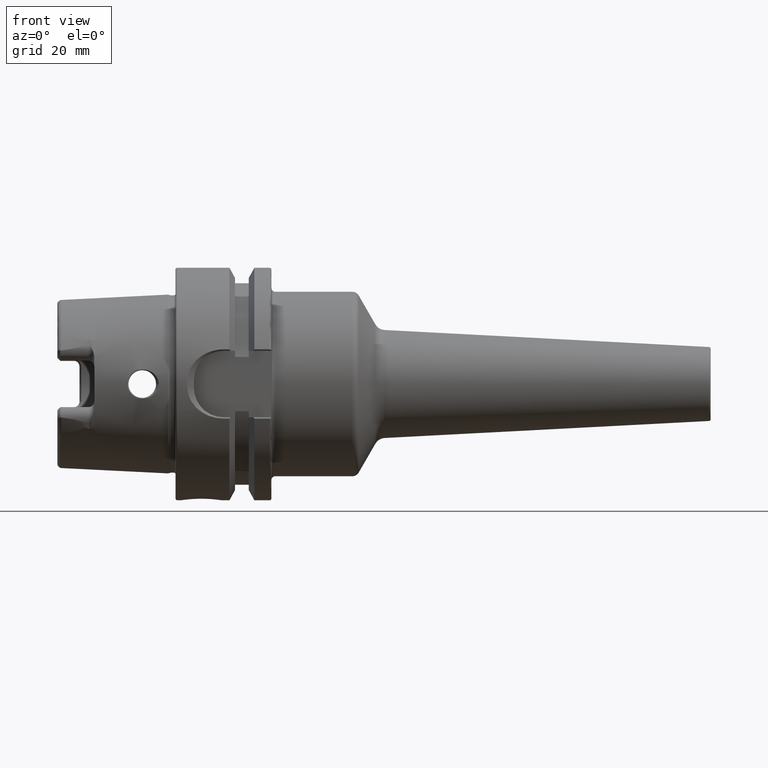
[diagram: clean part render]
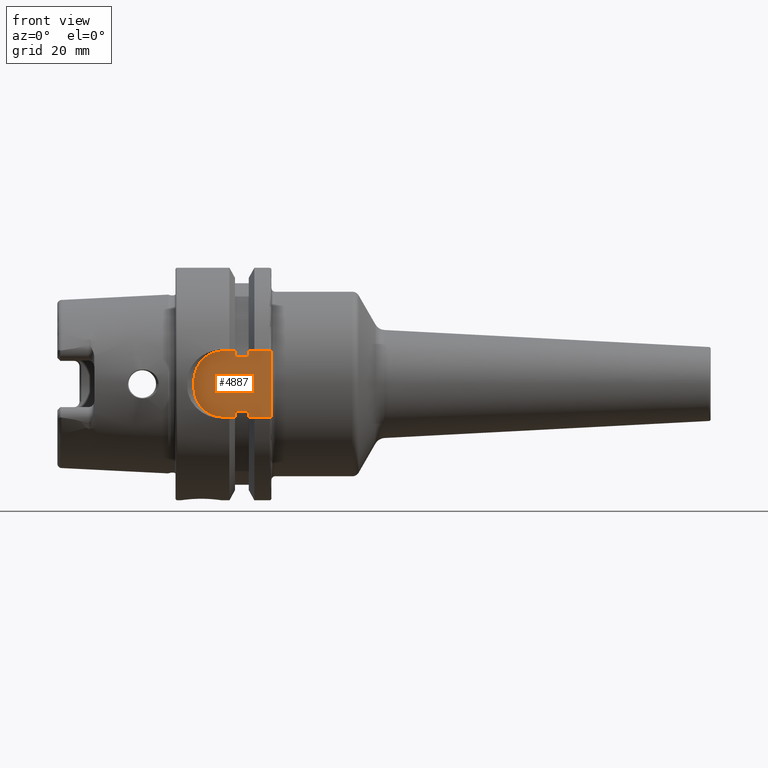
[diagram: same view with one face highlighted and labeled with its STEP entity id]
A machine part, front view. The second image highlights one B-rep face of the part: STEP entity #4887.
In plain terms, the highlighted planar face has unit normal (0, 1, 0).
Its self-contained STEP definition (entity closure, byte-faithful):
#1694=DIRECTION('',(0.E0,0.E0,1.E0));
#1695=VECTOR('',#1694,1.651530771650E0);
#1696=CARTESIAN_POINT('',(1.6125E1,-2.65E1,-9.E0));
#1697=LINE('',#1696,#1695);
#1726=DIRECTION('',(0.E0,0.E0,1.E0));
#1727=VECTOR('',#1726,1.651530771650E0);
#1728=CARTESIAN_POINT('',(1.6125E1,-2.65E1,7.348469228350E0));
#1729=LINE('',#1728,#1727);
#1734=CARTESIAN_POINT('',(1.3E1,-2.65E1,1.E0));
#1735=DIRECTION('',(0.E0,-1.E0,0.E0));
#1736=DIRECTION('',(0.E0,0.E0,1.E0));
#1737=AXIS2_PLACEMENT_3D('',#1734,#1735,#1736);
#1739=DIRECTION('',(1.E0,0.E0,0.E0));
#1740=VECTOR('',#1739,3.125E0);
#1741=CARTESIAN_POINT('',(1.3E1,-2.65E1,9.E0));
#1742=LINE('',#1741,#1740);
#1743=DIRECTION('',(1.E0,0.E0,0.E0));
#1744=VECTOR('',#1743,6.125E0);
#1745=CARTESIAN_POINT('',(1.9875E1,-2.65E1,9.E0));
#1746=LINE('',#1745,#1744);
#1747=DIRECTION('',(-1.E0,0.E0,0.E0));
#1748=VECTOR('',#1747,6.125E0);
#1749=CARTESIAN_POINT('',(2.6E1,-2.65E1,-9.E0));
#1750=LINE('',#1749,#1748);
#1751=DIRECTION('',(-1.E0,0.E0,0.E0));
#1752=VECTOR('',#1751,3.125E0);
#1753=CARTESIAN_POINT('',(1.6125E1,-2.65E1,-9.E0));
#1754=LINE('',#1753,#1752);
#1755=CARTESIAN_POINT('',(1.3E1,-2.65E1,-1.E0));
#1756=DIRECTION('',(0.E0,-1.E0,0.E0));
#1757=DIRECTION('',(-1.E0,0.E0,0.E0));
#1758=AXIS2_PLACEMENT_3D('',#1755,#1756,#1757);
#1760=DIRECTION('',(0.E0,0.E0,1.E0));
#1761=VECTOR('',#1760,2.E0);
#1762=CARTESIAN_POINT('',(5.E0,-2.65E1,-1.E0));
#1763=LINE('',#1762,#1761);
#1881=DIRECTION('',(1.E0,0.E0,0.E0));
#1882=VECTOR('',#1881,3.75E0);
#1883=CARTESIAN_POINT('',(1.6125E1,-2.65E1,7.348469228350E0));
#1884=LINE('',#1883,#1882);
#1899=DIRECTION('',(1.E0,0.E0,0.E0));
#1900=VECTOR('',#1899,3.75E0);
#1901=CARTESIAN_POINT('',(1.6125E1,-2.65E1,-7.348469228350E0));
#1902=LINE('',#1901,#1900);
#1917=DIRECTION('',(0.E0,0.E0,1.E0));
#1918=VECTOR('',#1917,1.651530771650E0);
#1919=CARTESIAN_POINT('',(1.9875E1,-2.65E1,-9.E0));
#1920=LINE('',#1919,#1918);
#1941=DIRECTION('',(0.E0,0.E0,1.E0));
#1942=VECTOR('',#1941,1.651530771650E0);
#1943=CARTESIAN_POINT('',(1.9875E1,-2.65E1,7.348469228350E0));
#1944=LINE('',#1943,#1942);
#2106=DIRECTION('',(0.E0,0.E0,1.E0));
#2107=VECTOR('',#2106,1.8E1);
#2108=CARTESIAN_POINT('',(2.6E1,-2.65E1,-9.E0));
#2109=LINE('',#2108,#2107);
#2579=CARTESIAN_POINT('',(2.6E1,-2.65E1,-9.E0));
#2580=CARTESIAN_POINT('',(2.6E1,-2.65E1,9.E0));
#2581=VERTEX_POINT('',#2579);
#2582=VERTEX_POINT('',#2580);
#2583=CARTESIAN_POINT('',(1.6125E1,-2.65E1,-9.E0));
#2584=CARTESIAN_POINT('',(1.6125E1,-2.65E1,-7.348469228350E0));
#2585=VERTEX_POINT('',#2583);
#2586=VERTEX_POINT('',#2584);
#2587=CARTESIAN_POINT('',(1.6125E1,-2.65E1,7.348469228350E0));
#2588=CARTESIAN_POINT('',(1.6125E1,-2.65E1,9.E0));
#2589=VERTEX_POINT('',#2587);
#2590=VERTEX_POINT('',#2588);
#2595=CARTESIAN_POINT('',(1.9875E1,-2.65E1,7.348469228350E0));
#2596=VERTEX_POINT('',#2595);
#2597=CARTESIAN_POINT('',(1.9875E1,-2.65E1,-7.348469228350E0));
#2598=VERTEX_POINT('',#2597);
#2599=CARTESIAN_POINT('',(1.9875E1,-2.65E1,-9.E0));
#2600=VERTEX_POINT('',#2599);
#2601=CARTESIAN_POINT('',(1.9875E1,-2.65E1,9.E0));
#2602=VERTEX_POINT('',#2601);
#2607=CARTESIAN_POINT('',(1.3E1,-2.65E1,9.E0));
#2608=CARTESIAN_POINT('',(5.E0,-2.65E1,1.E0));
#2609=VERTEX_POINT('',#2607);
#2610=VERTEX_POINT('',#2608);
#2611=CARTESIAN_POINT('',(5.E0,-2.65E1,-1.E0));
#2612=CARTESIAN_POINT('',(1.3E1,-2.65E1,-9.E0));
#2613=VERTEX_POINT('',#2611);
#2614=VERTEX_POINT('',#2612);
#4854=CARTESIAN_POINT('',(0.E0,-2.65E1,0.E0));
#4855=DIRECTION('',(0.E0,1.E0,0.E0));
#4856=DIRECTION('',(-1.E0,0.E0,0.E0));
#4857=AXIS2_PLACEMENT_3D('',#4854,#4855,#4856);
#4858=PLANE('',#4857);
#4860=ORIENTED_EDGE('',*,*,#4859,.F.);
#4862=ORIENTED_EDGE('',*,*,#4861,.T.);
#4863=ORIENTED_EDGE('',*,*,#4846,.F.);
#4865=ORIENTED_EDGE('',*,*,#4864,.T.);
#4867=ORIENTED_EDGE('',*,*,#4866,.T.);
#4869=ORIENTED_EDGE('',*,*,#4868,.T.);
#4871=ORIENTED_EDGE('',*,*,#4870,.F.);
#4873=ORIENTED_EDGE('',*,*,#4872,.T.);
#4875=ORIENTED_EDGE('',*,*,#4874,.T.);
#4877=ORIENTED_EDGE('',*,*,#4876,.F.);
#4878=ORIENTED_EDGE('',*,*,#4817,.F.);
#4880=ORIENTED_EDGE('',*,*,#4879,.T.);
#4882=ORIENTED_EDGE('',*,*,#4881,.F.);
#4884=ORIENTED_EDGE('',*,*,#4883,.T.);
#4885=EDGE_LOOP('',(#4860,#4862,#4863,#4865,#4867,#4869,#4871,#4873,#4875,#4877,
#4878,#4880,#4882,#4884));
#4886=FACE_OUTER_BOUND('',#4885,.F.);
#4887=ADVANCED_FACE('',(#4886),#4858,.F.);
#1738=CIRCLE('',#1737,8.E0);
#1759=CIRCLE('',#1758,8.E0);
#4817=EDGE_CURVE('',#2585,#2586,#1697,.T.);
#4846=EDGE_CURVE('',#2589,#2590,#1729,.T.);
#4859=EDGE_CURVE('',#2609,#2610,#1738,.T.);
#4861=EDGE_CURVE('',#2609,#2590,#1742,.T.);
#4864=EDGE_CURVE('',#2589,#2596,#1884,.T.);
#4866=EDGE_CURVE('',#2596,#2602,#1944,.T.);
#4868=EDGE_CURVE('',#2602,#2582,#1746,.T.);
#4870=EDGE_CURVE('',#2581,#2582,#2109,.T.);
#4872=EDGE_CURVE('',#2581,#2600,#1750,.T.);
#4874=EDGE_CURVE('',#2600,#2598,#1920,.T.);
#4876=EDGE_CURVE('',#2586,#2598,#1902,.T.);
#4879=EDGE_CURVE('',#2585,#2614,#1754,.T.);
#4881=EDGE_CURVE('',#2613,#2614,#1759,.T.);
#4883=EDGE_CURVE('',#2613,#2610,#1763,.T.);